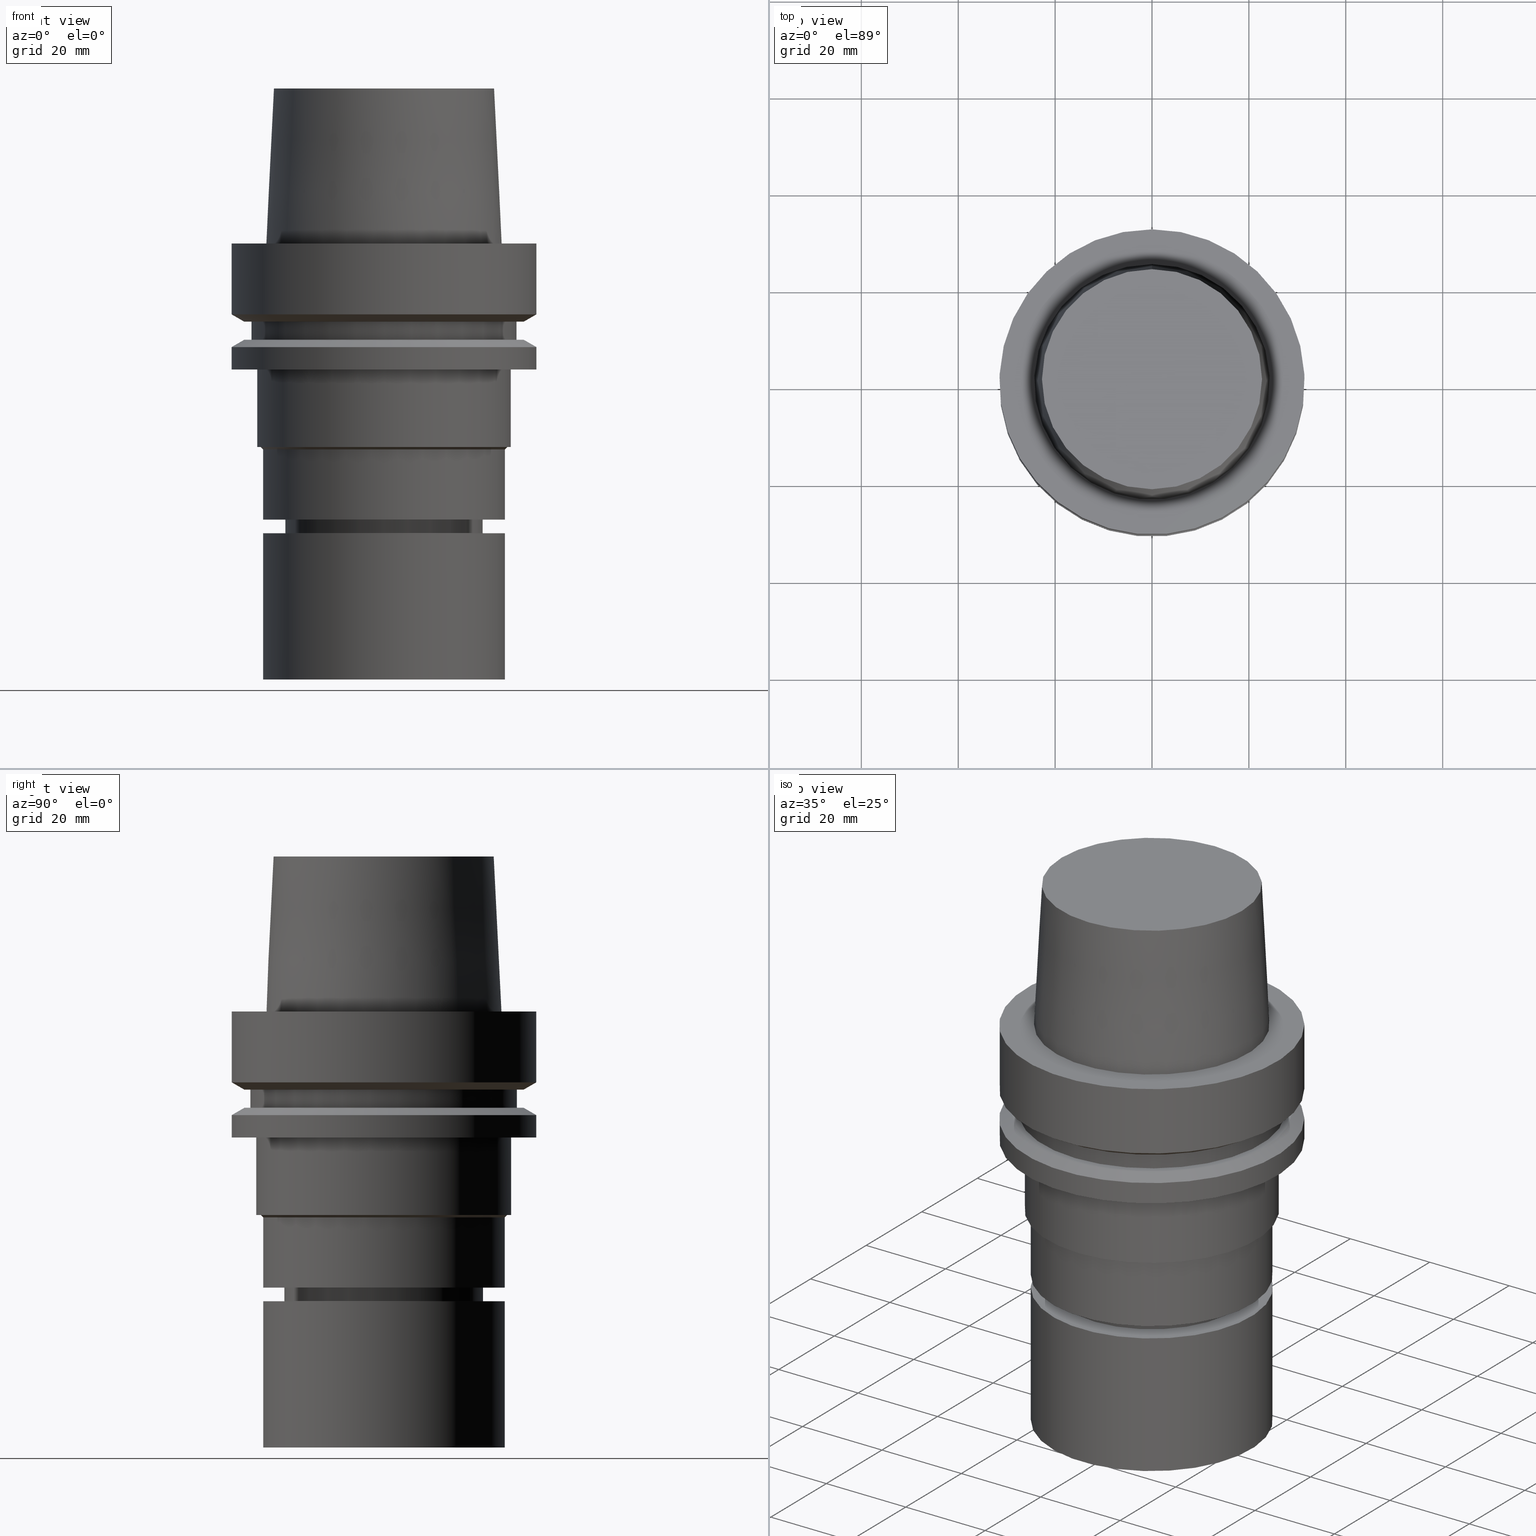
[diagram: canonical four-view strip — front | top / right | iso, engineering-drawing reading convention]
A machine part, canonical four-view strip (front | top / right | iso — engineering-drawing reading convention). The complete STEP part file that produces these views, byte-faithful:
ISO-10303-21;
HEADER;
FILE_DESCRIPTION((''),'1');
FILE_NAME('V:/90_\X2\53D65F9730C730FC30BF\X0\/00_\X2\6DE18DEF30C730FC30BF\X0\/ALL/HSK-BKUS\X2\52A05DE556F3\X0\_201801/HSK-A63-MEGAER/HSK-A63-MEGAER32-90NL.stp','2018-02-01T02:54:08',(''),(''),'Spatial Interop R21 SP3','Kubotek KeyCreator 2011 V10.0.2 (22737)',' ');
FILE_SCHEMA(('automotive_design'));
ENDSEC;
DATA;
#1=MECHANICAL_DESIGN_GEOMETRIC_PRESENTATION_REPRESENTATION(' ',(#14,#15,#16,#17,#18,#19,#20,#21,#22,#23,#24,#25,#26,#27,#28,#29,#30,#31,#32,#33,#34,#35,#36,#37,#38,#39,#40,#41,#42,#43,#44,#45,#46,#47,#48,#49,#50,#51,#52,#53,#54,#55,#56,#57,#58,#59,#60,#61),#10);
#2=PRODUCT_DEFINITION_CONTEXT('',#62,'design');
#3=APPLICATION_PROTOCOL_DEFINITION('INTERNATIONAL STANDARD','automotive_design',1994,#62);
#4=PRODUCT_CATEGORY_RELATIONSHIP('NONE','NONE',#63,#64);
#5=SHAPE_DEFINITION_REPRESENTATION(#65,#66);
#6=PRODUCT_DEFINITION_CONTEXT('',#67,'design');
#7=APPLICATION_PROTOCOL_DEFINITION('INTERNATIONAL STANDARD','automotive_design',1994,#67);
#8=PRODUCT_CATEGORY_RELATIONSHIP('NONE','NONE',#68,#69);
#9=SHAPE_DEFINITION_REPRESENTATION(#70,#71);
#10= (GEOMETRIC_REPRESENTATION_CONTEXT(3)GLOBAL_UNCERTAINTY_ASSIGNED_CONTEXT((#74))GLOBAL_UNIT_ASSIGNED_CONTEXT((#76,#77,#78))REPRESENTATION_CONTEXT('NONE','WORKSPACE'));
#14=STYLED_ITEM('',(#80),#81);
#15=STYLED_ITEM('',(#82),#83);
#16=STYLED_ITEM('',(#84,#85),#86);
#17=STYLED_ITEM('',(#87),#88);
#18=STYLED_ITEM('',(#89),#90);
#19=STYLED_ITEM('',(#91,#92),#93);
#20=STYLED_ITEM('',(#94),#95);
#21=STYLED_ITEM('',(#96,#97),#98);
#22=STYLED_ITEM('',(#99),#100);
#23=STYLED_ITEM('',(#101),#102);
#24=STYLED_ITEM('',(#103),#104);
#25=STYLED_ITEM('',(#105),#106);
#26=STYLED_ITEM('',(#107,#108),#109);
#27=STYLED_ITEM('',(#110,#111),#112);
#28=STYLED_ITEM('',(#113,#114),#115);
#29=STYLED_ITEM('',(#116),#117);
#30=STYLED_ITEM('',(#118,#119),#120);
#31=STYLED_ITEM('',(#121,#122),#123);
#32=STYLED_ITEM('',(#124),#125);
#33=STYLED_ITEM('',(#126,#127),#128);
#34=STYLED_ITEM('',(#129,#130),#131);
#35=STYLED_ITEM('',(#132,#133),#134);
#36=STYLED_ITEM('',(#135),#136);
#37=STYLED_ITEM('',(#137,#138),#139);
#38=STYLED_ITEM('',(#140),#141);
#39=STYLED_ITEM('',(#142),#143);
#40=STYLED_ITEM('',(#144),#145);
#41=STYLED_ITEM('',(#146),#147);
#42=STYLED_ITEM('',(#148),#149);
#43=STYLED_ITEM('',(#150,#151),#152);
#44=STYLED_ITEM('',(#153),#154);
#45=STYLED_ITEM('',(#155,#156),#157);
#46=STYLED_ITEM('',(#158,#159),#160);
#47=STYLED_ITEM('',(#161,#162),#163);
#48=STYLED_ITEM('',(#164),#165);
#49=STYLED_ITEM('',(#166,#167),#168);
#50=STYLED_ITEM('',(#169,#170),#171);
#51=STYLED_ITEM('',(#172,#173),#174);
#52=STYLED_ITEM('',(#175),#176);
#53=STYLED_ITEM('',(#177,#178),#179);
#54=STYLED_ITEM('',(#180,#181),#182);
#55=STYLED_ITEM('',(#183,#184),#185);
#56=STYLED_ITEM('',(#186,#187),#188);
#57=STYLED_ITEM('',(#189,#190),#191);
#58=STYLED_ITEM('',(#192,#193),#194);
#59=STYLED_ITEM('',(#195),#196);
#60=STYLED_ITEM('',(#197),#198);
#61=STYLED_ITEM('',(#199,#200),#201);
#62=APPLICATION_CONTEXT(' ');
#63=PRODUCT_CATEGORY('part','NONE');
#64=PRODUCT_RELATED_PRODUCT_CATEGORY('detail',' ',(#202));
#65=PRODUCT_DEFINITION_SHAPE('NONE','NONE',#203);
#66=ADVANCED_BREP_SHAPE_REPRESENTATION('Unnamed[1]',(#98,#204),#10);
#67=APPLICATION_CONTEXT(' ');
#68=PRODUCT_CATEGORY('part','NONE');
#69=PRODUCT_RELATED_PRODUCT_CATEGORY('detail',' ',(#205));
#70=PRODUCT_DEFINITION_SHAPE('NONE','NONE',#206);
#71=ADVANCED_BREP_SHAPE_REPRESENTATION('Unnamed[1]',(#128,#207),#10);
#74=UNCERTAINTY_MEASURE_WITH_UNIT(LENGTH_MEASURE(1.0E-006),#76,'','');
#76= (CONVERSION_BASED_UNIT('MILLIMETRE',#210)LENGTH_UNIT()NAMED_UNIT(#213));
#77= (NAMED_UNIT(#215)PLANE_ANGLE_UNIT()SI_UNIT($,.RADIAN.));
#78= (NAMED_UNIT(#215)SOLID_ANGLE_UNIT()SI_UNIT($,.STERADIAN.));
#80=PRESENTATION_STYLE_ASSIGNMENT((#221));
#81=EDGE_CURVE('Unnamed[1]',#222,#222,#223,.T.);
#82=PRESENTATION_STYLE_ASSIGNMENT((#224));
#83=EDGE_CURVE('Unnamed[1]',#225,#225,#226,.T.);
#84=PRESENTATION_STYLE_ASSIGNMENT((#227));
#85=PRESENTATION_STYLE_ASSIGNMENT((#228));
#86=ADVANCED_FACE('Unnamed[1]',(#229,#230),#231,.T.);
#87=PRESENTATION_STYLE_ASSIGNMENT((#232));
#88=EDGE_CURVE('Unnamed[1]',#233,#233,#234,.T.);
#89=PRESENTATION_STYLE_ASSIGNMENT((#235));
#90=EDGE_CURVE('Unnamed[1]',#236,#236,#237,.T.);
#91=PRESENTATION_STYLE_ASSIGNMENT((#238));
#92=PRESENTATION_STYLE_ASSIGNMENT((#239));
#93=ADVANCED_FACE('Unnamed[1]',(#240),#241,.T.);
#94=PRESENTATION_STYLE_ASSIGNMENT((#242));
#95=EDGE_CURVE('Unnamed[1]',#243,#243,#244,.T.);
#96=PRESENTATION_STYLE_ASSIGNMENT((#245));
#97=PRESENTATION_STYLE_ASSIGNMENT((#246));
#98=MANIFOLD_SOLID_BREP('Unnamed[1]',#247);
#99=PRESENTATION_STYLE_ASSIGNMENT((#248));
#100=EDGE_CURVE('Unnamed[1]',#249,#249,#250,.T.);
#101=PRESENTATION_STYLE_ASSIGNMENT((#251));
#102=EDGE_CURVE('Unnamed[1]',#252,#252,#253,.T.);
#103=PRESENTATION_STYLE_ASSIGNMENT((#254));
#104=EDGE_CURVE('Unnamed[1]',#255,#255,#256,.T.);
#105=PRESENTATION_STYLE_ASSIGNMENT((#257));
#106=EDGE_CURVE('Unnamed[1]',#258,#258,#259,.T.);
#107=PRESENTATION_STYLE_ASSIGNMENT((#260));
#108=PRESENTATION_STYLE_ASSIGNMENT((#261));
#109=ADVANCED_FACE('Unnamed[1]',(#262),#263,.T.);
#110=PRESENTATION_STYLE_ASSIGNMENT((#264));
#111=PRESENTATION_STYLE_ASSIGNMENT((#265));
#112=ADVANCED_FACE('Unnamed[1]',(#266,#267),#268,.T.);
#113=PRESENTATION_STYLE_ASSIGNMENT((#269));
#114=PRESENTATION_STYLE_ASSIGNMENT((#270));
#115=ADVANCED_FACE('Unnamed[1]',(#271,#272),#273,.T.);
#116=PRESENTATION_STYLE_ASSIGNMENT((#274));
#117=EDGE_CURVE('Unnamed[1]',#275,#275,#276,.T.);
#118=PRESENTATION_STYLE_ASSIGNMENT((#277));
#119=PRESENTATION_STYLE_ASSIGNMENT((#278));
#120=ADVANCED_FACE('Unnamed[1]',(#279,#280),#281,.T.);
#121=PRESENTATION_STYLE_ASSIGNMENT((#282));
#122=PRESENTATION_STYLE_ASSIGNMENT((#283));
#123=ADVANCED_FACE('Unnamed[1]',(#284),#285,.T.);
#124=PRESENTATION_STYLE_ASSIGNMENT((#286));
#125=EDGE_CURVE('Unnamed[1]',#287,#287,#288,.T.);
#126=PRESENTATION_STYLE_ASSIGNMENT((#289));
#127=PRESENTATION_STYLE_ASSIGNMENT((#290));
#128=MANIFOLD_SOLID_BREP('Unnamed[1]',#291);
#129=PRESENTATION_STYLE_ASSIGNMENT((#292));
#130=PRESENTATION_STYLE_ASSIGNMENT((#293));
#131=ADVANCED_FACE('Unnamed[1]',(#294,#295),#296,.T.);
#132=PRESENTATION_STYLE_ASSIGNMENT((#297));
#133=PRESENTATION_STYLE_ASSIGNMENT((#298));
#134=ADVANCED_FACE('Unnamed[1]',(#299,#300),#301,.T.);
#135=PRESENTATION_STYLE_ASSIGNMENT((#302));
#136=EDGE_CURVE('Unnamed[1]',#303,#303,#304,.T.);
#137=PRESENTATION_STYLE_ASSIGNMENT((#305));
#138=PRESENTATION_STYLE_ASSIGNMENT((#306));
#139=ADVANCED_FACE('Unnamed[1]',(#307,#308),#309,.T.);
#140=PRESENTATION_STYLE_ASSIGNMENT((#310));
#141=EDGE_CURVE('Unnamed[1]',#311,#311,#312,.T.);
#142=PRESENTATION_STYLE_ASSIGNMENT((#313));
#143=EDGE_CURVE('Unnamed[1]',#314,#314,#315,.T.);
#144=PRESENTATION_STYLE_ASSIGNMENT((#316));
#145=EDGE_CURVE('Unnamed[1]',#317,#317,#318,.T.);
#146=PRESENTATION_STYLE_ASSIGNMENT((#319));
#147=EDGE_CURVE('Unnamed[1]',#320,#320,#321,.T.);
#148=PRESENTATION_STYLE_ASSIGNMENT((#322));
#149=EDGE_CURVE('Unnamed[1]',#323,#323,#324,.T.);
#150=PRESENTATION_STYLE_ASSIGNMENT((#325));
#151=PRESENTATION_STYLE_ASSIGNMENT((#326));
#152=ADVANCED_FACE('Unnamed[1]',(#327,#328),#329,.T.);
#153=PRESENTATION_STYLE_ASSIGNMENT((#330));
#154=EDGE_CURVE('Unnamed[1]',#331,#331,#332,.T.);
#155=PRESENTATION_STYLE_ASSIGNMENT((#333));
#156=PRESENTATION_STYLE_ASSIGNMENT((#334));
#157=ADVANCED_FACE('Unnamed[1]',(#335,#336),#337,.T.);
#158=PRESENTATION_STYLE_ASSIGNMENT((#338));
#159=PRESENTATION_STYLE_ASSIGNMENT((#339));
#160=ADVANCED_FACE('Unnamed[1]',(#340,#341),#342,.T.);
#161=PRESENTATION_STYLE_ASSIGNMENT((#343));
#162=PRESENTATION_STYLE_ASSIGNMENT((#344));
#163=ADVANCED_FACE('Unnamed[1]',(#345,#346),#347,.T.);
#164=PRESENTATION_STYLE_ASSIGNMENT((#348));
#165=EDGE_CURVE('Unnamed[1]',#349,#349,#350,.T.);
#166=PRESENTATION_STYLE_ASSIGNMENT((#351));
#167=PRESENTATION_STYLE_ASSIGNMENT((#352));
#168=ADVANCED_FACE('Unnamed[1]',(#353,#354),#355,.T.);
#169=PRESENTATION_STYLE_ASSIGNMENT((#356));
#170=PRESENTATION_STYLE_ASSIGNMENT((#357));
#171=ADVANCED_FACE('Unnamed[1]',(#358,#359),#360,.T.);
#172=PRESENTATION_STYLE_ASSIGNMENT((#361));
#173=PRESENTATION_STYLE_ASSIGNMENT((#362));
#174=ADVANCED_FACE('Unnamed[1]',(#363,#364),#365,.T.);
#175=PRESENTATION_STYLE_ASSIGNMENT((#366));
#176=EDGE_CURVE('Unnamed[1]',#367,#367,#368,.T.);
#177=PRESENTATION_STYLE_ASSIGNMENT((#369));
#178=PRESENTATION_STYLE_ASSIGNMENT((#370));
#179=ADVANCED_FACE('Unnamed[1]',(#371,#372),#373,.T.);
#180=PRESENTATION_STYLE_ASSIGNMENT((#374));
#181=PRESENTATION_STYLE_ASSIGNMENT((#375));
#182=ADVANCED_FACE('Unnamed[1]',(#376),#377,.T.);
#183=PRESENTATION_STYLE_ASSIGNMENT((#378));
#184=PRESENTATION_STYLE_ASSIGNMENT((#379));
#185=ADVANCED_FACE('Unnamed[1]',(#380,#381),#382,.T.);
#186=PRESENTATION_STYLE_ASSIGNMENT((#383));
#187=PRESENTATION_STYLE_ASSIGNMENT((#384));
#188=ADVANCED_FACE('Unnamed[1]',(#385,#386),#387,.T.);
#189=PRESENTATION_STYLE_ASSIGNMENT((#388));
#190=PRESENTATION_STYLE_ASSIGNMENT((#389));
#191=ADVANCED_FACE('Unnamed[1]',(#390,#391),#392,.T.);
#192=PRESENTATION_STYLE_ASSIGNMENT((#393));
#193=PRESENTATION_STYLE_ASSIGNMENT((#394));
#194=ADVANCED_FACE('Unnamed[1]',(#395,#396),#397,.T.);
#195=PRESENTATION_STYLE_ASSIGNMENT((#398));
#196=EDGE_CURVE('Unnamed[1]',#399,#399,#400,.T.);
#197=PRESENTATION_STYLE_ASSIGNMENT((#401));
#198=EDGE_CURVE('Unnamed[1]',#402,#402,#403,.T.);
#199=PRESENTATION_STYLE_ASSIGNMENT((#404));
#200=PRESENTATION_STYLE_ASSIGNMENT((#405));
#201=ADVANCED_FACE('Unnamed[1]',(#406,#407),#408,.T.);
#202=PRODUCT('Unnamed[1]','Unnamed[1]','PART-Unnamed[1]-DESC',(#409));
#203=PRODUCT_DEFINITION('NONE','NONE',#410,#2);
#204=AXIS2_PLACEMENT_3D('',#411,#412,#413);
#205=PRODUCT('Unnamed[1]','Unnamed[1]','PART-Unnamed[1]-DESC',(#414));
#206=PRODUCT_DEFINITION('NONE','NONE',#415,#6);
#207=AXIS2_PLACEMENT_3D('',#416,#417,#418);
#210=LENGTH_MEASURE_WITH_UNIT(LENGTH_MEASURE(1.0),#419);
#213=DIMENSIONAL_EXPONENTS(1.0,0.0,0.0,0.0,0.0,0.0,0.0);
#215=DIMENSIONAL_EXPONENTS(0.0,0.0,0.0,0.0,0.0,0.0,0.0);
#221=CURVE_STYLE('',#420,POSITIVE_LENGTH_MEASURE(1000.0),#421);
#222=VERTEX_POINT('',#422);
#223=CIRCLE('',#423,31.5);
#224=CURVE_STYLE('',#424,POSITIVE_LENGTH_MEASURE(1000.0),#425);
#225=VERTEX_POINT('',#426);
#226=CIRCLE('',#427,28.8975952641919);
#227=SURFACE_STYLE_USAGE(.BOTH.,#428);
#228=CURVE_STYLE('',#429,POSITIVE_LENGTH_MEASURE(1000.0),#430);
#229=FACE_BOUND('',#431,.T.);
#230=FACE_BOUND('',#432,.T.);
#231=CYLINDRICAL_SURFACE('',#433,26.3000000000001);
#232=CURVE_STYLE('',#434,POSITIVE_LENGTH_MEASURE(1000.0),#435);
#233=VERTEX_POINT('',#436);
#234=CIRCLE('',#437,25.0);
#235=CURVE_STYLE('',#438,POSITIVE_LENGTH_MEASURE(1000.0),#439);
#236=VERTEX_POINT('',#440);
#237=CIRCLE('',#441,20.4999999999911);
#238=SURFACE_STYLE_USAGE(.BOTH.,#442);
#239=CURVE_STYLE('',#443,POSITIVE_LENGTH_MEASURE(1000.0),#444);
#240=FACE_OUTER_BOUND('',#445,.T.);
#241=PLANE('',#446);
#242=CURVE_STYLE('',#447,POSITIVE_LENGTH_MEASURE(1000.0),#448);
#243=VERTEX_POINT('',#449);
#244=CIRCLE('',#450,20.0);
#245=SURFACE_STYLE_USAGE(.BOTH.,#451);
#246=CURVE_STYLE('',#452,POSITIVE_LENGTH_MEASURE(1000.0),#453);
#247=CLOSED_SHELL('',(#123,#185,#163,#188,#160,#191,#179,#120,#134,#86,#139,#152,#115,#168,#194,#201,#131,#174,#112,#157,#182));
#248=CURVE_STYLE('',#454,POSITIVE_LENGTH_MEASURE(1000.0),#455);
#249=VERTEX_POINT('',#456);
#250=CIRCLE('',#457,31.5000000000001);
#251=CURVE_STYLE('',#458,POSITIVE_LENGTH_MEASURE(1000.0),#459);
#252=VERTEX_POINT('',#460);
#253=CIRCLE('',#461,20.5000000000012);
#254=CURVE_STYLE('',#462,POSITIVE_LENGTH_MEASURE(1000.0),#463);
#255=VERTEX_POINT('',#464);
#256=CIRCLE('',#465,18.8999999999997);
#257=CURVE_STYLE('',#466,POSITIVE_LENGTH_MEASURE(1000.0),#467);
#258=VERTEX_POINT('',#468);
#259=CIRCLE('',#469,27.5);
#260=SURFACE_STYLE_USAGE(.BOTH.,#470);
#261=CURVE_STYLE('',#471,POSITIVE_LENGTH_MEASURE(1000.0),#472);
#262=FACE_OUTER_BOUND('',#473,.T.);
#263=PLANE('',#474);
#264=SURFACE_STYLE_USAGE(.BOTH.,#475);
#265=CURVE_STYLE('',#476,POSITIVE_LENGTH_MEASURE(1000.0),#477);
#266=FACE_BOUND('',#478,.T.);
#267=FACE_OUTER_BOUND('',#479,.T.);
#268=PLANE('',#480);
#269=SURFACE_STYLE_USAGE(.BOTH.,#481);
#270=CURVE_STYLE('',#482,POSITIVE_LENGTH_MEASURE(1000.0),#483);
#271=FACE_BOUND('',#484,.T.);
#272=FACE_BOUND('',#485,.T.);
#273=CONICAL_SURFACE('',#486,30.1987976320959,1.04719755119657);
#274=CURVE_STYLE('',#487,POSITIVE_LENGTH_MEASURE(1000.0),#488);
#275=VERTEX_POINT('',#489);
#276=CIRCLE('',#490,24.9999999999999);
#277=SURFACE_STYLE_USAGE(.BOTH.,#491);
#278=CURVE_STYLE('',#492,POSITIVE_LENGTH_MEASURE(1000.0),#493);
#279=FACE_BOUND('',#494,.T.);
#280=FACE_BOUND('',#495,.T.);
#281=CONICAL_SURFACE('',#496,25.2500000000002,0.785398163397381);
#282=SURFACE_STYLE_USAGE(.BOTH.,#497);
#283=CURVE_STYLE('',#498,POSITIVE_LENGTH_MEASURE(1000.0),#499);
#284=FACE_OUTER_BOUND('',#500,.T.);
#285=PLANE('',#501);
#286=CURVE_STYLE('',#502,POSITIVE_LENGTH_MEASURE(1000.0),#503);
#287=VERTEX_POINT('',#504);
#288=CIRCLE('',#505,27.4999999999989);
#289=SURFACE_STYLE_USAGE(.BOTH.,#506);
#290=CURVE_STYLE('',#507,POSITIVE_LENGTH_MEASURE(1000.0),#508);
#291=CLOSED_SHELL('',(#109,#93,#171));
#292=SURFACE_STYLE_USAGE(.BOTH.,#509);
#293=CURVE_STYLE('',#510,POSITIVE_LENGTH_MEASURE(1000.0),#511);
#294=FACE_BOUND('',#512,.T.);
#295=FACE_BOUND('',#513,.T.);
#296=CONICAL_SURFACE('',#514,30.1987976320959,1.04719755119657);
#297=SURFACE_STYLE_USAGE(.BOTH.,#515);
#298=CURVE_STYLE('',#516,POSITIVE_LENGTH_MEASURE(1000.0),#517);
#299=FACE_OUTER_BOUND('',#518,.T.);
#300=FACE_BOUND('',#519,.T.);
#301=PLANE('',#520);
#302=CURVE_STYLE('',#521,POSITIVE_LENGTH_MEASURE(1000.0),#522);
#303=VERTEX_POINT('',#523);
#304=CIRCLE('',#524,28.8975952641919);
#305=SURFACE_STYLE_USAGE(.BOTH.,#525);
#306=CURVE_STYLE('',#526,POSITIVE_LENGTH_MEASURE(1000.0),#527);
#307=FACE_OUTER_BOUND('',#528,.T.);
#308=FACE_BOUND('',#529,.T.);
#309=PLANE('',#530);
#310=CURVE_STYLE('',#531,POSITIVE_LENGTH_MEASURE(1000.0),#532);
#311=VERTEX_POINT('',#533);
#312=CIRCLE('',#534,26.3);
#313=CURVE_STYLE('',#535,POSITIVE_LENGTH_MEASURE(1000.0),#536);
#314=VERTEX_POINT('',#537);
#315=CIRCLE('',#538,31.4999999999998);
#316=CURVE_STYLE('',#539,POSITIVE_LENGTH_MEASURE(1000.0),#540);
#317=VERTEX_POINT('',#541);
#318=CIRCLE('',#542,24.315);
#319=CURVE_STYLE('',#543,POSITIVE_LENGTH_MEASURE(1000.0),#544);
#320=VERTEX_POINT('',#545);
#321=CIRCLE('',#546,25.0);
#322=CURVE_STYLE('',#547,POSITIVE_LENGTH_MEASURE(1000.0),#548);
#323=VERTEX_POINT('',#549);
#324=CIRCLE('',#550,31.5);
#325=SURFACE_STYLE_USAGE(.BOTH.,#551);
#326=CURVE_STYLE('',#552,POSITIVE_LENGTH_MEASURE(1000.0),#553);
#327=FACE_BOUND('',#554,.T.);
#328=FACE_BOUND('',#555,.T.);
#329=CYLINDRICAL_SURFACE('',#556,31.4999999999999);
#330=CURVE_STYLE('',#557,POSITIVE_LENGTH_MEASURE(1000.0),#558);
#331=VERTEX_POINT('',#559);
#332=CIRCLE('',#560,25.5000000000002);
#333=SURFACE_STYLE_USAGE(.BOTH.,#561);
#334=CURVE_STYLE('',#562,POSITIVE_LENGTH_MEASURE(1000.0),#563);
#335=FACE_BOUND('',#564,.T.);
#336=FACE_BOUND('',#565,.T.);
#337=CONICAL_SURFACE('',#566,23.515,0.0499583957219433);
#338=SURFACE_STYLE_USAGE(.BOTH.,#567);
#339=CURVE_STYLE('',#568,POSITIVE_LENGTH_MEASURE(1000.0),#569);
#340=FACE_BOUND('',#570,.T.);
#341=FACE_BOUND('',#571,.T.);
#342=CYLINDRICAL_SURFACE('',#572,20.4999999999961);
#343=SURFACE_STYLE_USAGE(.BOTH.,#573);
#344=CURVE_STYLE('',#574,POSITIVE_LENGTH_MEASURE(1000.0),#575);
#345=FACE_BOUND('',#576,.T.);
#346=FACE_BOUND('',#577,.T.);
#347=CYLINDRICAL_SURFACE('',#578,20.0);
#348=CURVE_STYLE('',#579,POSITIVE_LENGTH_MEASURE(1000.0),#580);
#349=VERTEX_POINT('',#581);
#350=CIRCLE('',#582,22.715);
#351=SURFACE_STYLE_USAGE(.BOTH.,#583);
#352=CURVE_STYLE('',#584,POSITIVE_LENGTH_MEASURE(1000.0),#585);
#353=FACE_BOUND('',#586,.T.);
#354=FACE_OUTER_BOUND('',#587,.T.);
#355=PLANE('',#588);
#356=SURFACE_STYLE_USAGE(.BOTH.,#589);
#357=CURVE_STYLE('',#590,POSITIVE_LENGTH_MEASURE(1000.0),#591);
#358=FACE_BOUND('',#592,.T.);
#359=FACE_BOUND('',#593,.T.);
#360=CYLINDRICAL_SURFACE('',#594,25.0);
#361=SURFACE_STYLE_USAGE(.BOTH.,#595);
#362=CURVE_STYLE('',#596,POSITIVE_LENGTH_MEASURE(1000.0),#597);
#363=FACE_BOUND('',#598,.T.);
#364=FACE_BOUND('',#599,.T.);
#365=CYLINDRICAL_SURFACE('',#600,31.5);
#366=CURVE_STYLE('',#601,POSITIVE_LENGTH_MEASURE(1000.0),#602);
#367=VERTEX_POINT('',#603);
#368=CIRCLE('',#604,20.0000000000001);
#369=SURFACE_STYLE_USAGE(.BOTH.,#605);
#370=CURVE_STYLE('',#606,POSITIVE_LENGTH_MEASURE(1000.0),#607);
#371=FACE_BOUND('',#608,.T.);
#372=FACE_BOUND('',#609,.T.);
#373=CYLINDRICAL_SURFACE('',#610,25.0000000000001);
#374=SURFACE_STYLE_USAGE(.BOTH.,#611);
#375=CURVE_STYLE('',#612,POSITIVE_LENGTH_MEASURE(1000.0),#613);
#376=FACE_OUTER_BOUND('',#614,.T.);
#377=PLANE('',#615);
#378=SURFACE_STYLE_USAGE(.BOTH.,#616);
#379=CURVE_STYLE('',#617,POSITIVE_LENGTH_MEASURE(1000.0),#618);
#380=FACE_BOUND('',#619,.T.);
#381=FACE_BOUND('',#620,.T.);
#382=CONICAL_SURFACE('',#621,19.4499999999999,0.523598775598219);
#383=SURFACE_STYLE_USAGE(.BOTH.,#622);
#384=CURVE_STYLE('',#623,POSITIVE_LENGTH_MEASURE(1000.0),#624);
#385=FACE_BOUND('',#625,.T.);
#386=FACE_BOUND('',#626,.T.);
#387=CONICAL_SURFACE('',#627,20.2500000000006,1.04719755120248);
#388=SURFACE_STYLE_USAGE(.BOTH.,#628);
#389=CURVE_STYLE('',#629,POSITIVE_LENGTH_MEASURE(1000.0),#630);
#390=FACE_OUTER_BOUND('',#631,.T.);
#391=FACE_BOUND('',#632,.T.);
#392=PLANE('',#633);
#393=SURFACE_STYLE_USAGE(.BOTH.,#634);
#394=CURVE_STYLE('',#635,POSITIVE_LENGTH_MEASURE(1000.0),#636);
#395=FACE_BOUND('',#637,.T.);
#396=FACE_BOUND('',#638,.T.);
#397=CYLINDRICAL_SURFACE('',#639,27.4999999999994);
#398=CURVE_STYLE('',#640,POSITIVE_LENGTH_MEASURE(1000.0),#641);
#399=VERTEX_POINT('',#642);
#400=CIRCLE('',#643,25.0000000000002);
#401=CURVE_STYLE('',#644,POSITIVE_LENGTH_MEASURE(1000.0),#645);
#402=VERTEX_POINT('',#646);
#403=CIRCLE('',#647,26.3000000000001);
#404=SURFACE_STYLE_USAGE(.BOTH.,#648);
#405=CURVE_STYLE('',#649,POSITIVE_LENGTH_MEASURE(1000.0),#650);
#406=FACE_OUTER_BOUND('',#651,.T.);
#407=FACE_BOUND('',#652,.T.);
#408=PLANE('',#653);
#409=PRODUCT_CONTEXT('',#62,'mechanical');
#410=PRODUCT_DEFINITION_FORMATION_WITH_SPECIFIED_SOURCE(' ','NONE',#202,.NOT_KNOWN.);
#411=CARTESIAN_POINT('',(0.0,0.0,0.0));
#412=DIRECTION('',(0.0,0.0,1.0));
#413=DIRECTION('',(1.0,0.0,0.0));
#414=PRODUCT_CONTEXT('',#67,'mechanical');
#415=PRODUCT_DEFINITION_FORMATION_WITH_SPECIFIED_SOURCE(' ','NONE',#205,.NOT_KNOWN.);
#416=CARTESIAN_POINT('',(0.0,0.0,0.0));
#417=DIRECTION('',(0.0,0.0,1.0));
#418=DIRECTION('',(1.0,0.0,0.0));
#419= (NAMED_UNIT(#213)LENGTH_UNIT()SI_UNIT(.MILLI.,.METRE.));
#420=DRAUGHTING_PRE_DEFINED_CURVE_FONT('continuous');
#421=COLOUR_RGB('',0.0,1.0,0.0);
#422=CARTESIAN_POINT('',(1.30899429078397E-015,31.5,-21.3774990747592));
#423=AXIS2_PLACEMENT_3D('',#655,#656,#657);
#424=DRAUGHTING_PRE_DEFINED_CURVE_FONT('continuous');
#425=COLOUR_RGB('',0.0,1.0,0.0);
#426=CARTESIAN_POINT('',(1.21699275665268E-015,28.8975952641919,-19.875));
#427=AXIS2_PLACEMENT_3D('',#658,#659,#660);
#428=SURFACE_SIDE_STYLE('',(#661));
#429=DRAUGHTING_PRE_DEFINED_CURVE_FONT('continuous');
#430=COLOUR_RGB('',0.0,1.0,0.0);
#431=EDGE_LOOP('',(#662));
#432=EDGE_LOOP('',(#663));
#433=AXIS2_PLACEMENT_3D('',#664,#665,#666);
#434=DRAUGHTING_PRE_DEFINED_CURVE_FONT('continuous');
#435=COLOUR_RGB('',0.0,1.0,0.0);
#436=CARTESIAN_POINT('',(3.66169392945059E-015,25.0,-59.8));
#437=AXIS2_PLACEMENT_3D('',#667,#668,#669);
#438=DRAUGHTING_PRE_DEFINED_CURVE_FONT('continuous');
#439=COLOUR_RGB('',0.0,1.0,0.0);
#440=CARTESIAN_POINT('',(3.49025302591328E-015,20.4999999999911,-57.0001575694042));
#441=AXIS2_PLACEMENT_3D('',#670,#671,#672);
#442=SURFACE_SIDE_STYLE('',(#673));
#443=DRAUGHTING_PRE_DEFINED_CURVE_FONT('continuous');
#444=COLOUR_RGB('',0.0,1.0,0.0);
#445=EDGE_LOOP('',(#674));
#446=AXIS2_PLACEMENT_3D('',#675,#676,#677);
#447=DRAUGHTING_PRE_DEFINED_CURVE_FONT('continuous');
#448=COLOUR_RGB('',0.0,1.0,0.0);
#449=CARTESIAN_POINT('',(3.88826323563546E-015,20.0,-63.5001575693925));
#450=AXIS2_PLACEMENT_3D('',#678,#679,#680);
#451=SURFACE_SIDE_STYLE('',(#681));
#452=DRAUGHTING_PRE_DEFINED_CURVE_FONT('continuous');
#453=COLOUR_RGB('',0.0,1.0,0.0);
#454=DRAUGHTING_PRE_DEFINED_CURVE_FONT('continuous');
#455=COLOUR_RGB('',0.0,1.0,0.0);
#456=CARTESIAN_POINT('',(-3.88267476788467E-031,31.5000000000001,3.85763741731417E-015));
#457=AXIS2_PLACEMENT_3D('',#682,#683,#684);
#458=DRAUGHTING_PRE_DEFINED_CURVE_FONT('continuous');
#459=COLOUR_RGB('',0.0,1.0,0.0);
#460=CARTESIAN_POINT('',(3.87058698165691E-015,20.5000000000012,-63.211482434801));
#461=AXIS2_PLACEMENT_3D('',#685,#686,#687);
#462=DRAUGHTING_PRE_DEFINED_CURVE_FONT('continuous');
#463=COLOUR_RGB('',0.0,1.0,0.0);
#464=CARTESIAN_POINT('',(4.83735485663205E-015,18.8999999999997,-79.0000000000001));
#465=AXIS2_PLACEMENT_3D('',#688,#689,#690);
#466=DRAUGHTING_PRE_DEFINED_CURVE_FONT('continuous');
#467=COLOUR_RGB('',0.0,1.0,0.0);
#468=CARTESIAN_POINT('',(9.87371481812537E-016,27.5,-16.1249999999997));
#469=AXIS2_PLACEMENT_3D('',#691,#692,#693);
#470=SURFACE_SIDE_STYLE('',(#694));
#471=DRAUGHTING_PRE_DEFINED_CURVE_FONT('continuous');
#472=COLOUR_RGB('',0.0,1.0,0.0);
#473=EDGE_LOOP('',(#695));
#474=AXIS2_PLACEMENT_3D('',#696,#697,#698);
#475=SURFACE_SIDE_STYLE('',(#699));
#476=DRAUGHTING_PRE_DEFINED_CURVE_FONT('continuous');
#477=COLOUR_RGB('',0.0,1.0,0.0);
#478=EDGE_LOOP('',(#700));
#479=EDGE_LOOP('',(#701));
#480=AXIS2_PLACEMENT_3D('',#702,#703,#704);
#481=SURFACE_SIDE_STYLE('',(#705));
#482=DRAUGHTING_PRE_DEFINED_CURVE_FONT('continuous');
#483=COLOUR_RGB('',0.0,1.0,0.0);
#484=EDGE_LOOP('',(#706));
#485=EDGE_LOOP('',(#707));
#486=AXIS2_PLACEMENT_3D('',#708,#709,#710);
#487=DRAUGHTING_PRE_DEFINED_CURVE_FONT('continuous');
#488=COLOUR_RGB('',0.0,1.0,0.0);
#489=CARTESIAN_POINT('',(3.49025302591325E-015,24.9999999999999,-57.0001575694037));
#490=AXIS2_PLACEMENT_3D('',#711,#712,#713);
#491=SURFACE_SIDE_STYLE('',(#714));
#492=DRAUGHTING_PRE_DEFINED_CURVE_FONT('continuous');
#493=COLOUR_RGB('',0.0,1.0,0.0);
#494=EDGE_LOOP('',(#715));
#495=EDGE_LOOP('',(#716));
#496=AXIS2_PLACEMENT_3D('',#717,#718,#719);
#497=SURFACE_SIDE_STYLE('',(#720));
#498=DRAUGHTING_PRE_DEFINED_CURVE_FONT('continuous');
#499=COLOUR_RGB('',0.0,1.0,0.0);
#500=EDGE_LOOP('',(#721));
#501=AXIS2_PLACEMENT_3D('',#722,#723,#724);
#502=DRAUGHTING_PRE_DEFINED_CURVE_FONT('continuous');
#503=COLOUR_RGB('',0.0,1.0,0.0);
#504=CARTESIAN_POINT('',(1.21699275665276E-015,27.4999999999989,-19.8750000000013));
#505=AXIS2_PLACEMENT_3D('',#725,#726,#727);
#506=SURFACE_SIDE_STYLE('',(#728));
#507=DRAUGHTING_PRE_DEFINED_CURVE_FONT('continuous');
#508=COLOUR_RGB('',0.0,1.0,0.0);
#509=SURFACE_SIDE_STYLE('',(#729));
#510=DRAUGHTING_PRE_DEFINED_CURVE_FONT('continuous');
#511=COLOUR_RGB('',0.0,1.0,0.0);
#512=EDGE_LOOP('',(#730));
#513=EDGE_LOOP('',(#731));
#514=AXIS2_PLACEMENT_3D('',#732,#733,#734);
#515=SURFACE_SIDE_STYLE('',(#735));
#516=DRAUGHTING_PRE_DEFINED_CURVE_FONT('continuous');
#517=COLOUR_RGB('',0.0,1.0,0.0);
#518=EDGE_LOOP('',(#736));
#519=EDGE_LOOP('',(#737));
#520=AXIS2_PLACEMENT_3D('',#738,#739,#740);
#521=DRAUGHTING_PRE_DEFINED_CURVE_FONT('continuous');
#522=COLOUR_RGB('',0.0,1.0,0.0);
#523=CARTESIAN_POINT('',(9.87371481812551E-016,28.8975952641919,-16.125));
#524=AXIS2_PLACEMENT_3D('',#741,#742,#743);
#525=SURFACE_SIDE_STYLE('',(#744));
#526=DRAUGHTING_PRE_DEFINED_CURVE_FONT('continuous');
#527=COLOUR_RGB('',0.0,1.0,0.0);
#528=EDGE_LOOP('',(#745));
#529=EDGE_LOOP('',(#746));
#530=AXIS2_PLACEMENT_3D('',#747,#748,#749);
#531=DRAUGHTING_PRE_DEFINED_CURVE_FONT('continuous');
#532=COLOUR_RGB('',0.0,1.0,0.0);
#533=CARTESIAN_POINT('',(1.59204083889154E-015,26.3,-25.9999999999997));
#534=AXIS2_PLACEMENT_3D('',#750,#751,#752);
#535=DRAUGHTING_PRE_DEFINED_CURVE_FONT('continuous');
#536=COLOUR_RGB('',0.0,1.0,0.0);
#537=CARTESIAN_POINT('',(1.59204083889155E-015,31.4999999999998,-25.9999999999999));
#538=AXIS2_PLACEMENT_3D('',#753,#754,#755);
#539=DRAUGHTING_PRE_DEFINED_CURVE_FONT('continuous');
#540=COLOUR_RGB('',0.0,1.0,0.0);
#541=CARTESIAN_POINT('',(-2.99705514225764E-031,24.315,2.97772869212679E-015));
#542=AXIS2_PLACEMENT_3D('',#756,#757,#758);
#543=DRAUGHTING_PRE_DEFINED_CURVE_FONT('continuous');
#544=COLOUR_RGB('',0.0,1.0,0.0);
#545=CARTESIAN_POINT('',(5.51091059616309E-015,25.0,-90.0));
#546=AXIS2_PLACEMENT_3D('',#759,#760,#761);
#547=DRAUGHTING_PRE_DEFINED_CURVE_FONT('continuous');
#548=COLOUR_RGB('',0.0,1.0,0.0);
#549=CARTESIAN_POINT('',(8.95369947681261E-016,31.5,-14.6225009252407));
#550=AXIS2_PLACEMENT_3D('',#762,#763,#764);
#551=SURFACE_SIDE_STYLE('',(#765));
#552=DRAUGHTING_PRE_DEFINED_CURVE_FONT('continuous');
#553=COLOUR_RGB('',0.0,1.0,0.0);
#554=EDGE_LOOP('',(#766));
#555=EDGE_LOOP('',(#767));
#556=AXIS2_PLACEMENT_3D('',#768,#769,#770);
#557=DRAUGHTING_PRE_DEFINED_CURVE_FONT('continuous');
#558=COLOUR_RGB('',0.0,1.0,0.0);
#559=CARTESIAN_POINT('',(2.57175827820944E-015,25.5000000000002,-42.0));
#560=AXIS2_PLACEMENT_3D('',#771,#772,#773);
#561=SURFACE_SIDE_STYLE('',(#774));
#562=DRAUGHTING_PRE_DEFINED_CURVE_FONT('continuous');
#563=COLOUR_RGB('',0.0,1.0,0.0);
#564=EDGE_LOOP('',(#775));
#565=EDGE_LOOP('',(#776));
#566=AXIS2_PLACEMENT_3D('',#777,#778,#779);
#567=SURFACE_SIDE_STYLE('',(#780));
#568=DRAUGHTING_PRE_DEFINED_CURVE_FONT('continuous');
#569=COLOUR_RGB('',0.0,1.0,0.0);
#570=EDGE_LOOP('',(#781));
#571=EDGE_LOOP('',(#782));
#572=AXIS2_PLACEMENT_3D('',#783,#784,#785);
#573=SURFACE_SIDE_STYLE('',(#786));
#574=DRAUGHTING_PRE_DEFINED_CURVE_FONT('continuous');
#575=COLOUR_RGB('',0.0,1.0,0.0);
#576=EDGE_LOOP('',(#787));
#577=EDGE_LOOP('',(#788));
#578=AXIS2_PLACEMENT_3D('',#789,#790,#791);
#579=DRAUGHTING_PRE_DEFINED_CURVE_FONT('continuous');
#580=COLOUR_RGB('',0.0,1.0,0.0);
#581=CARTESIAN_POINT('',(-1.95943487863576E-015,22.715,32.0));
#582=AXIS2_PLACEMENT_3D('',#792,#793,#794);
#583=SURFACE_SIDE_STYLE('',(#795));
#584=DRAUGHTING_PRE_DEFINED_CURVE_FONT('continuous');
#585=COLOUR_RGB('',0.0,1.0,0.0);
#586=EDGE_LOOP('',(#796));
#587=EDGE_LOOP('',(#797));
#588=AXIS2_PLACEMENT_3D('',#798,#799,#800);
#589=SURFACE_SIDE_STYLE('',(#801));
#590=DRAUGHTING_PRE_DEFINED_CURVE_FONT('continuous');
#591=COLOUR_RGB('',0.0,1.0,0.0);
#592=EDGE_LOOP('',(#802));
#593=EDGE_LOOP('',(#803));
#594=AXIS2_PLACEMENT_3D('',#804,#805,#806);
#595=SURFACE_SIDE_STYLE('',(#807));
#596=DRAUGHTING_PRE_DEFINED_CURVE_FONT('continuous');
#597=COLOUR_RGB('',0.0,1.0,0.0);
#598=EDGE_LOOP('',(#808));
#599=EDGE_LOOP('',(#809));
#600=AXIS2_PLACEMENT_3D('',#810,#811,#812);
#601=DRAUGHTING_PRE_DEFINED_CURVE_FONT('continuous');
#602=COLOUR_RGB('',0.0,1.0,0.0);
#603=CARTESIAN_POINT('',(4.72069158037225E-015,20.0000000000001,-77.0947441116734));
#604=AXIS2_PLACEMENT_3D('',#813,#814,#815);
#605=SURFACE_SIDE_STYLE('',(#816));
#606=DRAUGHTING_PRE_DEFINED_CURVE_FONT('continuous');
#607=COLOUR_RGB('',0.0,1.0,0.0);
#608=EDGE_LOOP('',(#817));
#609=EDGE_LOOP('',(#818));
#610=AXIS2_PLACEMENT_3D('',#819,#820,#821);
#611=SURFACE_SIDE_STYLE('',(#822));
#612=DRAUGHTING_PRE_DEFINED_CURVE_FONT('continuous');
#613=COLOUR_RGB('',0.0,1.0,0.0);
#614=EDGE_LOOP('',(#823));
#615=AXIS2_PLACEMENT_3D('',#824,#825,#826);
#616=SURFACE_SIDE_STYLE('',(#827));
#617=DRAUGHTING_PRE_DEFINED_CURVE_FONT('continuous');
#618=COLOUR_RGB('',0.0,1.0,0.0);
#619=EDGE_LOOP('',(#828));
#620=EDGE_LOOP('',(#829));
#621=AXIS2_PLACEMENT_3D('',#830,#831,#832);
#622=SURFACE_SIDE_STYLE('',(#833));
#623=DRAUGHTING_PRE_DEFINED_CURVE_FONT('continuous');
#624=COLOUR_RGB('',0.0,1.0,0.0);
#625=EDGE_LOOP('',(#834));
#626=EDGE_LOOP('',(#835));
#627=AXIS2_PLACEMENT_3D('',#836,#837,#838);
#628=SURFACE_SIDE_STYLE('',(#839));
#629=DRAUGHTING_PRE_DEFINED_CURVE_FONT('continuous');
#630=COLOUR_RGB('',0.0,1.0,0.0);
#631=EDGE_LOOP('',(#840));
#632=EDGE_LOOP('',(#841));
#633=AXIS2_PLACEMENT_3D('',#842,#843,#844);
#634=SURFACE_SIDE_STYLE('',(#845));
#635=DRAUGHTING_PRE_DEFINED_CURVE_FONT('continuous');
#636=COLOUR_RGB('',0.0,1.0,0.0);
#637=EDGE_LOOP('',(#846));
#638=EDGE_LOOP('',(#847));
#639=AXIS2_PLACEMENT_3D('',#848,#849,#850);
#640=DRAUGHTING_PRE_DEFINED_CURVE_FONT('continuous');
#641=COLOUR_RGB('',0.0,1.0,0.0);
#642=CARTESIAN_POINT('',(2.60237444818813E-015,25.0000000000002,-42.5));
#643=AXIS2_PLACEMENT_3D('',#851,#852,#853);
#644=DRAUGHTING_PRE_DEFINED_CURVE_FONT('continuous');
#645=COLOUR_RGB('',0.0,1.0,0.0);
#646=CARTESIAN_POINT('',(2.57175827820944E-015,26.3000000000001,-41.9999999999999));
#647=AXIS2_PLACEMENT_3D('',#854,#855,#856);
#648=SURFACE_SIDE_STYLE('',(#857));
#649=DRAUGHTING_PRE_DEFINED_CURVE_FONT('continuous');
#650=COLOUR_RGB('',0.0,1.0,0.0);
#651=EDGE_LOOP('',(#858));
#652=EDGE_LOOP('',(#859));
#653=AXIS2_PLACEMENT_3D('',#860,#861,#862);
#655=CARTESIAN_POINT('',(1.30899429078397E-015,2.61798858156794E-015,-21.3774990747592));
#656=DIRECTION('',(-6.12323399573677E-017,-1.22464679914735E-016,1.0));
#657=DIRECTION('',(-1.23259516440783E-032,1.0,1.22464679914735E-016));
#658=CARTESIAN_POINT('',(1.21699275665268E-015,2.43398551330536E-015,-19.875));
#659=DIRECTION('',(-6.12323399573677E-017,-1.22464679914735E-016,1.0));
#660=DIRECTION('',(-1.23259516440783E-032,1.0,1.22464679914735E-016));
#661=SURFACE_STYLE_FILL_AREA(#863);
#662=ORIENTED_EDGE('',*,*,#141,.F.);
#663=ORIENTED_EDGE('',*,*,#198,.T.);
#664=CARTESIAN_POINT('',(2.08189955855049E-015,4.16379911710097E-015,-33.9999999999998));
#665=DIRECTION('',(-6.12323399573677E-017,-1.22464679914735E-016,1.0));
#666=DIRECTION('',(-1.23259516440783E-032,1.0,1.22464679914735E-016));
#667=CARTESIAN_POINT('',(3.66169392945059E-015,7.32338785890117E-015,-59.8));
#668=DIRECTION('',(6.12323399573677E-017,1.22464679914735E-016,-1.0));
#669=DIRECTION('',(-1.23259516440783E-032,1.0,1.22464679914735E-016));
#670=CARTESIAN_POINT('',(3.49025302591328E-015,6.98050605182656E-015,-57.0001575694042));
#671=DIRECTION('',(-6.12323399573677E-017,-1.22464679914735E-016,1.0));
#672=DIRECTION('',(-1.23259516440783E-032,1.0,1.22464679914735E-016));
#673=SURFACE_STYLE_FILL_AREA(#864);
#674=ORIENTED_EDGE('',*,*,#88,.F.);
#675=CARTESIAN_POINT('',(3.66169392945059E-015,12.5,-59.8));
#676=DIRECTION('',(-6.12323399573677E-017,-1.22464679914735E-016,1.0));
#677=DIRECTION('',(1.23259516440783E-032,-1.0,-1.22464679914735E-016));
#678=CARTESIAN_POINT('',(3.88826323563546E-015,7.77652647127091E-015,-63.5001575693925));
#679=DIRECTION('',(-6.12323399573677E-017,-1.22464679914735E-016,1.0));
#680=DIRECTION('',(-1.23259516440783E-032,1.0,1.22464679914735E-016));
#681=SURFACE_STYLE_FILL_AREA(#865);
#682=CARTESIAN_POINT('',(0.0,0.0,0.0));
#683=DIRECTION('',(-6.12323399573677E-017,-1.22464679914735E-016,1.0));
#684=DIRECTION('',(-1.23259516440783E-032,1.0,1.22464679914735E-016));
#685=CARTESIAN_POINT('',(3.87058698165691E-015,7.74117396331382E-015,-63.211482434801));
#686=DIRECTION('',(-6.12323399573677E-017,-1.22464679914735E-016,1.0));
#687=DIRECTION('',(-1.23259516440783E-032,1.0,1.22464679914735E-016));
#688=CARTESIAN_POINT('',(4.83735485663205E-015,9.6747097132641E-015,-79.0000000000001));
#689=DIRECTION('',(-6.12323399573677E-017,-1.22464679914735E-016,1.0));
#690=DIRECTION('',(-1.23259516440783E-032,1.0,1.22464679914735E-016));
#691=CARTESIAN_POINT('',(9.87371481812538E-016,1.97474296362508E-015,-16.1249999999997));
#692=DIRECTION('',(-6.12323399573677E-017,-1.22464679914735E-016,1.0));
#693=DIRECTION('',(-1.23259516440783E-032,1.0,1.22464679914735E-016));
#694=SURFACE_STYLE_FILL_AREA(#866);
#695=ORIENTED_EDGE('',*,*,#147,.T.);
#696=CARTESIAN_POINT('',(5.51091059616309E-015,12.5,-90.0));
#697=DIRECTION('',(6.12323399573677E-017,1.22464679914735E-016,-1.0));
#698=DIRECTION('',(-1.23259516440783E-032,1.0,1.22464679914735E-016));
#699=SURFACE_STYLE_FILL_AREA(#867);
#700=ORIENTED_EDGE('',*,*,#145,.F.);
#701=ORIENTED_EDGE('',*,*,#100,.T.);
#702=CARTESIAN_POINT('',(-3.43986495507116E-031,27.9075,3.41768305472048E-015));
#703=DIRECTION('',(-6.12323399573677E-017,-1.22464679914735E-016,1.0));
#704=DIRECTION('',(-1.23259516440783E-032,1.0,1.22464679914735E-016));
#705=SURFACE_STYLE_FILL_AREA(#868);
#706=ORIENTED_EDGE('',*,*,#83,.F.);
#707=ORIENTED_EDGE('',*,*,#81,.T.);
#708=CARTESIAN_POINT('',(1.26299352371833E-015,2.52598704743665E-015,-20.6262495373796));
#709=DIRECTION('',(6.12323399573677E-017,1.22464679914735E-016,-1.0));
#710=DIRECTION('',(-1.23259516440783E-032,1.0,1.22464679914735E-016));
#711=CARTESIAN_POINT('',(3.49025302591325E-015,6.9805060518265E-015,-57.0001575694037));
#712=DIRECTION('',(-6.12323399573677E-017,-1.22464679914735E-016,1.0));
#713=DIRECTION('',(-1.23259516440783E-032,1.0,1.22464679914735E-016));
#714=SURFACE_STYLE_FILL_AREA(#869);
#715=ORIENTED_EDGE('',*,*,#154,.F.);
#716=ORIENTED_EDGE('',*,*,#196,.T.);
#717=CARTESIAN_POINT('',(2.58706636319878E-015,5.17413272639757E-015,-42.25));
#718=DIRECTION('',(-6.12323399573677E-017,-1.22464679914735E-016,1.0));
#719=DIRECTION('',(-1.23259516440783E-032,1.0,1.22464679914735E-016));
#720=SURFACE_STYLE_FILL_AREA(#870);
#721=ORIENTED_EDGE('',*,*,#104,.F.);
#722=CARTESIAN_POINT('',(4.83735485663204E-015,9.44999999999986,-79.0));
#723=DIRECTION('',(6.12323399573677E-017,-1.41635797427753E-014,-1.0));
#724=DIRECTION('',(-8.62441977092136E-031,-1.0,1.41635797427753E-014));
#725=CARTESIAN_POINT('',(1.21699275665276E-015,2.43398551330552E-015,-19.8750000000013));
#726=DIRECTION('',(-6.12323399573677E-017,-1.22464679914735E-016,1.0));
#727=DIRECTION('',(-1.23259516440783E-032,1.0,1.22464679914735E-016));
#728=SURFACE_STYLE_FILL_AREA(#871);
#729=SURFACE_STYLE_FILL_AREA(#872);
#730=ORIENTED_EDGE('',*,*,#149,.F.);
#731=ORIENTED_EDGE('',*,*,#136,.T.);
#732=CARTESIAN_POINT('',(9.41370714746907E-016,1.88274142949381E-015,-15.3737504626203));
#733=DIRECTION('',(-6.12323399573677E-017,-1.22464679914735E-016,1.0));
#734=DIRECTION('',(-1.23259516440783E-032,1.0,1.22464679914735E-016));
#735=SURFACE_STYLE_FILL_AREA(#873);
#736=ORIENTED_EDGE('',*,*,#198,.F.);
#737=ORIENTED_EDGE('',*,*,#154,.T.);
#738=CARTESIAN_POINT('',(2.57175827820944E-015,25.9000000000001,-42.0));
#739=DIRECTION('',(6.12323399573677E-017,1.33349227634945E-013,-1.0));
#740=DIRECTION('',(8.17011239232611E-030,-1.0,-1.33349227634945E-013));
#741=CARTESIAN_POINT('',(9.87371481812552E-016,1.9747429636251E-015,-16.125));
#742=DIRECTION('',(-6.12323399573677E-017,-1.22464679914735E-016,1.0));
#743=DIRECTION('',(-1.23259516440783E-032,1.0,1.22464679914735E-016));
#744=SURFACE_STYLE_FILL_AREA(#874);
#745=ORIENTED_EDGE('',*,*,#143,.F.);
#746=ORIENTED_EDGE('',*,*,#141,.T.);
#747=CARTESIAN_POINT('',(1.59204083889155E-015,28.8999999999999,-25.9999999999998));
#748=DIRECTION('',(6.12323399573677E-017,-4.01871712910926E-014,-1.0));
#749=DIRECTION('',(-2.45592738169038E-030,-1.0,4.01871712910926E-014));
#750=CARTESIAN_POINT('',(1.59204083889154E-015,3.18408167778308E-015,-25.9999999999997));
#751=DIRECTION('',(-6.12323399573677E-017,-1.22464679914735E-016,1.0));
#752=DIRECTION('',(-1.23259516440783E-032,1.0,1.22464679914735E-016));
#753=CARTESIAN_POINT('',(1.59204083889155E-015,3.1840816777831E-015,-25.9999999999999));
#754=DIRECTION('',(-6.12323399573676E-017,-1.22464679914735E-016,1.0));
#755=DIRECTION('',(-1.23259516440783E-032,1.0,1.22464679914735E-016));
#756=CARTESIAN_POINT('',(0.0,0.0,0.0));
#757=DIRECTION('',(-6.12323399573677E-017,-1.22464679914735E-016,1.0));
#758=DIRECTION('',(-1.23259516440783E-032,1.0,1.22464679914735E-016));
#759=CARTESIAN_POINT('',(5.51091059616309E-015,1.10218211923262E-014,-90.0));
#760=DIRECTION('',(6.12323399573677E-017,1.22464679914735E-016,-1.0));
#761=DIRECTION('',(-1.23259516440783E-032,1.0,1.22464679914735E-016));
#762=CARTESIAN_POINT('',(8.95369947681262E-016,1.79073989536252E-015,-14.6225009252407));
#763=DIRECTION('',(-6.12323399573677E-017,-1.22464679914735E-016,1.0));
#764=DIRECTION('',(-1.23259516440783E-032,1.0,1.22464679914735E-016));
#765=SURFACE_STYLE_FILL_AREA(#875);
#766=ORIENTED_EDGE('',*,*,#81,.F.);
#767=ORIENTED_EDGE('',*,*,#143,.T.);
#768=CARTESIAN_POINT('',(1.45051756483776E-015,2.90103512967552E-015,-23.6887495373796));
#769=DIRECTION('',(-6.12323399573677E-017,-1.22464679914735E-016,1.0));
#770=DIRECTION('',(-1.23259516440783E-032,1.0,1.22464679914735E-016));
#771=CARTESIAN_POINT('',(2.57175827820944E-015,5.14351655641888E-015,-42.0));
#772=DIRECTION('',(-6.12323399573677E-017,-1.22464679914735E-016,1.0));
#773=DIRECTION('',(-1.23259516440783E-032,1.0,1.22464679914735E-016));
#774=SURFACE_STYLE_FILL_AREA(#876);
#775=ORIENTED_EDGE('',*,*,#165,.F.);
#776=ORIENTED_EDGE('',*,*,#145,.T.);
#777=CARTESIAN_POINT('',(-9.79717439317882E-016,-1.95943487863576E-015,16.0));
#778=DIRECTION('',(6.12323399573677E-017,1.22464679914735E-016,-1.0));
#779=DIRECTION('',(-1.23259516440783E-032,1.0,1.22464679914735E-016));
#780=SURFACE_STYLE_FILL_AREA(#877);
#781=ORIENTED_EDGE('',*,*,#90,.F.);
#782=ORIENTED_EDGE('',*,*,#102,.T.);
#783=CARTESIAN_POINT('',(3.6804200037851E-015,7.36084000757019E-015,-60.1058200021026));
#784=DIRECTION('',(-6.12323399573677E-017,-1.22464679914735E-016,1.0));
#785=DIRECTION('',(-1.23259516440783E-032,1.0,1.22464679914735E-016));
#786=SURFACE_STYLE_FILL_AREA(#878);
#787=ORIENTED_EDGE('',*,*,#95,.F.);
#788=ORIENTED_EDGE('',*,*,#176,.T.);
#789=CARTESIAN_POINT('',(4.30447740800386E-015,8.60895481600771E-015,-70.297450840533));
#790=DIRECTION('',(-6.12323399573677E-017,-1.22464679914735E-016,1.0));
#791=DIRECTION('',(-1.23259516440783E-032,1.0,1.22464679914735E-016));
#792=CARTESIAN_POINT('',(-1.95943487863576E-015,-3.91886975727153E-015,32.0));
#793=DIRECTION('',(-6.12323399573676E-017,-1.22464679914735E-016,1.0));
#794=DIRECTION('',(-1.23259516440783E-032,1.0,1.22464679914735E-016));
#795=SURFACE_STYLE_FILL_AREA(#879);
#796=ORIENTED_EDGE('',*,*,#125,.F.);
#797=ORIENTED_EDGE('',*,*,#83,.T.);
#798=CARTESIAN_POINT('',(1.21699275665272E-015,28.1987976320954,-19.8750000000006));
#799=DIRECTION('',(-6.12323399573677E-017,-9.58463617675421E-013,1.0));
#800=DIRECTION('',(-5.86937972270006E-029,1.0,9.58463617675421E-013));
#801=SURFACE_STYLE_FILL_AREA(#880);
#802=ORIENTED_EDGE('',*,*,#147,.F.);
#803=ORIENTED_EDGE('',*,*,#88,.T.);
#804=CARTESIAN_POINT('',(4.58630226280684E-015,9.17260452561367E-015,-74.9));
#805=DIRECTION('',(6.12323399573677E-017,1.22464679914735E-016,-1.0));
#806=DIRECTION('',(-1.23259516440783E-032,1.0,1.22464679914735E-016));
#807=SURFACE_STYLE_FILL_AREA(#881);
#808=ORIENTED_EDGE('',*,*,#100,.F.);
#809=ORIENTED_EDGE('',*,*,#149,.T.);
#810=CARTESIAN_POINT('',(4.47684973840631E-016,8.95369947681262E-016,-7.31125046262035));
#811=DIRECTION('',(-6.12323399573677E-017,-1.22464679914735E-016,1.0));
#812=DIRECTION('',(-1.23259516440783E-032,1.0,1.22464679914735E-016));
#813=CARTESIAN_POINT('',(4.72069158037225E-015,9.4413831607445E-015,-77.0947441116734));
#814=DIRECTION('',(-6.12323399573677E-017,-1.22464679914735E-016,1.0));
#815=DIRECTION('',(-1.23259516440783E-032,1.0,1.22464679914735E-016));
#816=SURFACE_STYLE_FILL_AREA(#882);
#817=ORIENTED_EDGE('',*,*,#196,.F.);
#818=ORIENTED_EDGE('',*,*,#117,.T.);
#819=CARTESIAN_POINT('',(3.04631373705069E-015,6.09262747410138E-015,-49.7500787847019));
#820=DIRECTION('',(-6.12323399573677E-017,-1.22464679914735E-016,1.0));
#821=DIRECTION('',(-1.23259516440783E-032,1.0,1.22464679914735E-016));
#822=SURFACE_STYLE_FILL_AREA(#883);
#823=ORIENTED_EDGE('',*,*,#165,.T.);
#824=CARTESIAN_POINT('',(-1.95943487863576E-015,11.3575,32.0));
#825=DIRECTION('',(-6.12323399573677E-017,9.72362339746437E-016,1.0));
#826=DIRECTION('',(5.47128686183263E-032,1.0,-9.72362339746437E-016));
#827=SURFACE_STYLE_FILL_AREA(#884);
#828=ORIENTED_EDGE('',*,*,#176,.F.);
#829=ORIENTED_EDGE('',*,*,#104,.T.);
#830=CARTESIAN_POINT('',(4.77902321850215E-015,9.5580464370043E-015,-78.0473720558367));
#831=DIRECTION('',(-6.12323399573677E-017,-1.22464679914735E-016,1.0));
#832=DIRECTION('',(-1.23259516440783E-032,1.0,1.22464679914735E-016));
#833=SURFACE_STYLE_FILL_AREA(#885);
#834=ORIENTED_EDGE('',*,*,#102,.F.);
#835=ORIENTED_EDGE('',*,*,#95,.T.);
#836=CARTESIAN_POINT('',(3.87942510864618E-015,7.75885021729237E-015,-63.3558200020968));
#837=DIRECTION('',(-6.12323399573677E-017,-1.22464679914735E-016,1.0));
#838=DIRECTION('',(-1.23259516440783E-032,1.0,1.22464679914735E-016));
#839=SURFACE_STYLE_FILL_AREA(#886);
#840=ORIENTED_EDGE('',*,*,#117,.F.);
#841=ORIENTED_EDGE('',*,*,#90,.T.);
#842=CARTESIAN_POINT('',(3.49025302591327E-015,22.7499999999955,-57.000157569404));
#843=DIRECTION('',(6.12323399573677E-017,1.12230318544067E-013,-1.0));
#844=DIRECTION('',(6.87695217134477E-030,-1.0,-1.12230318544067E-013));
#845=SURFACE_STYLE_FILL_AREA(#887);
#846=ORIENTED_EDGE('',*,*,#106,.F.);
#847=ORIENTED_EDGE('',*,*,#125,.T.);
#848=CARTESIAN_POINT('',(1.10218211923265E-015,2.2043642384653E-015,-18.0000000000005));
#849=DIRECTION('',(-6.12323399573677E-017,-1.22464679914735E-016,1.0));
#850=DIRECTION('',(-1.23259516440783E-032,1.0,1.22464679914735E-016));
#851=CARTESIAN_POINT('',(2.60237444818813E-015,5.20474889637625E-015,-42.5));
#852=DIRECTION('',(-6.12323399573677E-017,-1.22464679914735E-016,1.0));
#853=DIRECTION('',(-1.23259516440783E-032,1.0,1.22464679914735E-016));
#854=CARTESIAN_POINT('',(2.57175827820944E-015,5.14351655641887E-015,-41.9999999999999));
#855=DIRECTION('',(-6.12323399573677E-017,-1.22464679914735E-016,1.0));
#856=DIRECTION('',(-1.23259516440783E-032,1.0,1.22464679914735E-016));
#857=SURFACE_STYLE_FILL_AREA(#888);
#858=ORIENTED_EDGE('',*,*,#136,.F.);
#859=ORIENTED_EDGE('',*,*,#106,.T.);
#860=CARTESIAN_POINT('',(9.87371481812544E-016,28.1987976320959,-16.1249999999999));
#861=DIRECTION('',(6.12323399573677E-017,-1.65108768595307E-013,-1.0));
#862=DIRECTION('',(-1.01051690958394E-029,-1.0,1.65108768595307E-013));
#863=FILL_AREA_STYLE('',(#889));
#864=FILL_AREA_STYLE('',(#890));
#865=FILL_AREA_STYLE('',(#891));
#866=FILL_AREA_STYLE('',(#892));
#867=FILL_AREA_STYLE('',(#893));
#868=FILL_AREA_STYLE('',(#894));
#869=FILL_AREA_STYLE('',(#895));
#870=FILL_AREA_STYLE('',(#896));
#871=FILL_AREA_STYLE('',(#897));
#872=FILL_AREA_STYLE('',(#898));
#873=FILL_AREA_STYLE('',(#899));
#874=FILL_AREA_STYLE('',(#900));
#875=FILL_AREA_STYLE('',(#901));
#876=FILL_AREA_STYLE('',(#902));
#877=FILL_AREA_STYLE('',(#903));
#878=FILL_AREA_STYLE('',(#904));
#879=FILL_AREA_STYLE('',(#905));
#880=FILL_AREA_STYLE('',(#906));
#881=FILL_AREA_STYLE('',(#907));
#882=FILL_AREA_STYLE('',(#908));
#883=FILL_AREA_STYLE('',(#909));
#884=FILL_AREA_STYLE('',(#910));
#885=FILL_AREA_STYLE('',(#911));
#886=FILL_AREA_STYLE('',(#912));
#887=FILL_AREA_STYLE('',(#913));
#888=FILL_AREA_STYLE('',(#914));
#889=FILL_AREA_STYLE_COLOUR('',#915);
#890=FILL_AREA_STYLE_COLOUR('',#916);
#891=FILL_AREA_STYLE_COLOUR('',#917);
#892=FILL_AREA_STYLE_COLOUR('',#918);
#893=FILL_AREA_STYLE_COLOUR('',#919);
#894=FILL_AREA_STYLE_COLOUR('',#920);
#895=FILL_AREA_STYLE_COLOUR('',#921);
#896=FILL_AREA_STYLE_COLOUR('',#922);
#897=FILL_AREA_STYLE_COLOUR('',#923);
#898=FILL_AREA_STYLE_COLOUR('',#924);
#899=FILL_AREA_STYLE_COLOUR('',#925);
#900=FILL_AREA_STYLE_COLOUR('',#926);
#901=FILL_AREA_STYLE_COLOUR('',#927);
#902=FILL_AREA_STYLE_COLOUR('',#928);
#903=FILL_AREA_STYLE_COLOUR('',#929);
#904=FILL_AREA_STYLE_COLOUR('',#930);
#905=FILL_AREA_STYLE_COLOUR('',#931);
#906=FILL_AREA_STYLE_COLOUR('',#932);
#907=FILL_AREA_STYLE_COLOUR('',#933);
#908=FILL_AREA_STYLE_COLOUR('',#934);
#909=FILL_AREA_STYLE_COLOUR('',#935);
#910=FILL_AREA_STYLE_COLOUR('',#936);
#911=FILL_AREA_STYLE_COLOUR('',#937);
#912=FILL_AREA_STYLE_COLOUR('',#938);
#913=FILL_AREA_STYLE_COLOUR('',#939);
#914=FILL_AREA_STYLE_COLOUR('',#940);
#915=COLOUR_RGB('',0.0,1.0,0.0);
#916=COLOUR_RGB('',0.0,1.0,0.0);
#917=COLOUR_RGB('',0.0,1.0,0.0);
#918=COLOUR_RGB('',0.0,1.0,0.0);
#919=COLOUR_RGB('',0.0,1.0,0.0);
#920=COLOUR_RGB('',0.0,1.0,0.0);
#921=COLOUR_RGB('',0.0,1.0,0.0);
#922=COLOUR_RGB('',0.0,1.0,0.0);
#923=COLOUR_RGB('',0.0,1.0,0.0);
#924=COLOUR_RGB('',0.0,1.0,0.0);
#925=COLOUR_RGB('',0.0,1.0,0.0);
#926=COLOUR_RGB('',0.0,1.0,0.0);
#927=COLOUR_RGB('',0.0,1.0,0.0);
#928=COLOUR_RGB('',0.0,1.0,0.0);
#929=COLOUR_RGB('',0.0,1.0,0.0);
#930=COLOUR_RGB('',0.0,1.0,0.0);
#931=COLOUR_RGB('',0.0,1.0,0.0);
#932=COLOUR_RGB('',0.0,1.0,0.0);
#933=COLOUR_RGB('',0.0,1.0,0.0);
#934=COLOUR_RGB('',0.0,1.0,0.0);
#935=COLOUR_RGB('',0.0,1.0,0.0);
#936=COLOUR_RGB('',0.0,1.0,0.0);
#937=COLOUR_RGB('',0.0,1.0,0.0);
#938=COLOUR_RGB('',0.0,1.0,0.0);
#939=COLOUR_RGB('',0.0,1.0,0.0);
#940=COLOUR_RGB('',0.0,1.0,0.0);
ENDSEC;
END-ISO-10303-21;
